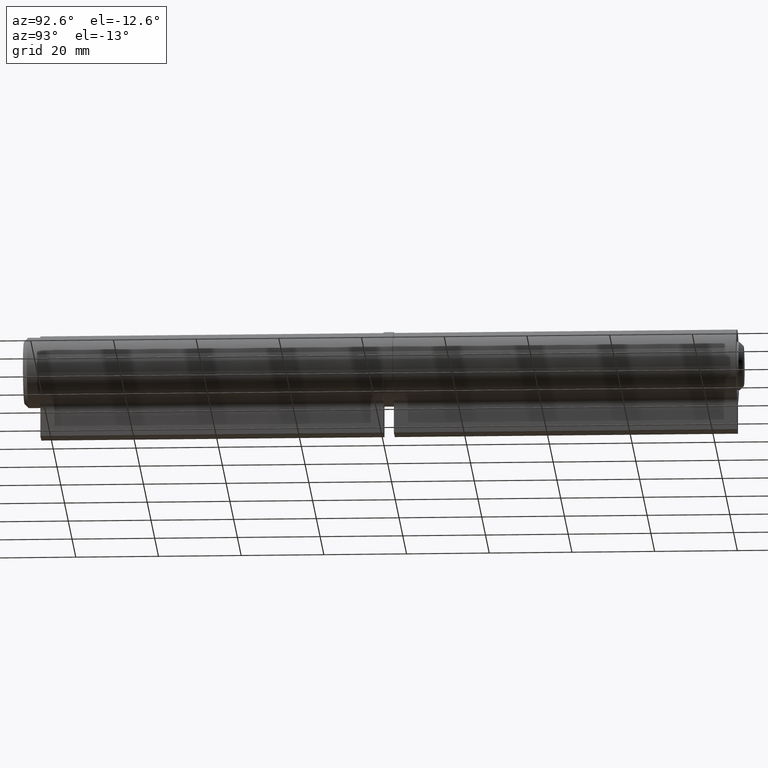
[diagram: clean part render]
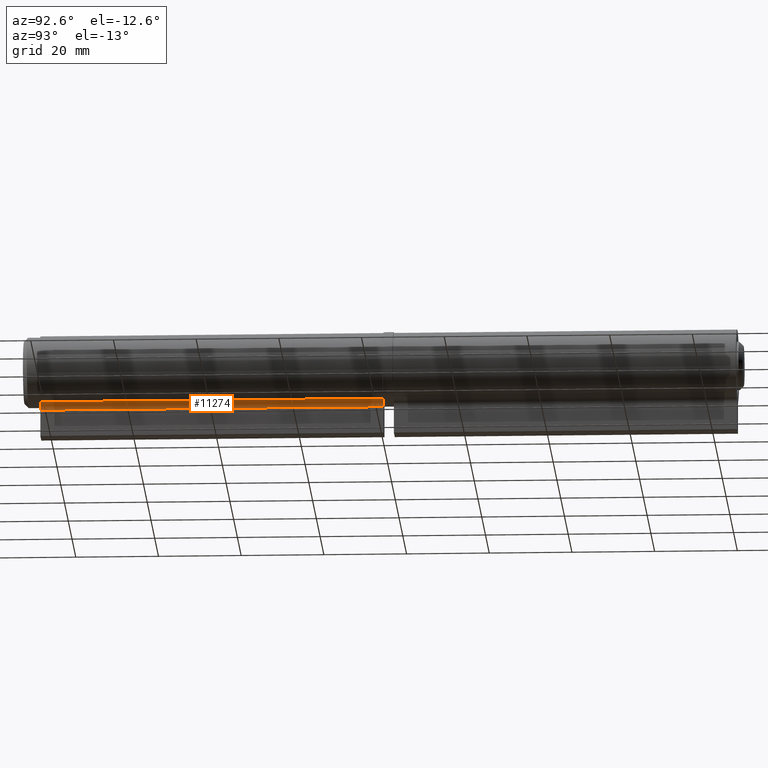
[diagram: same view with one face highlighted and labeled with its STEP entity id]
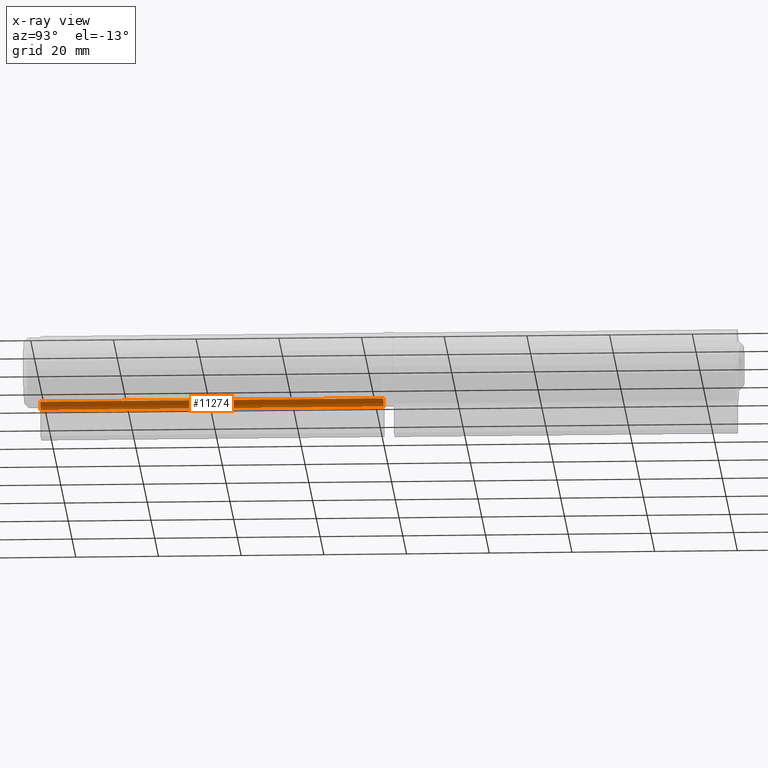
[diagram: x-ray of the same camera — body ghosted, the highlighted face saturated]
A machine part, auxiliary view. The second image highlights one B-rep face of the part: STEP entity #11274.
The next image is the same camera in x-ray: the body ghosted, the highlighted face saturated — about 0% of this face is hidden behind the body in this view.
In plain terms, the highlighted cylindrical surface (edge-blend (fillet) strip) has radius 2 mm, axis along (-0, -1, -0).
Its self-contained STEP definition (entity closure, byte-faithful):
#61 = DIRECTION ( 'NONE',  ( -0.000000000000000000, -1.000000000000000000, 0.000000000000000000 ) ) ;
#1046 = VERTEX_POINT ( 'NONE', #9500 ) ;
#1706 = ORIENTED_EDGE ( 'NONE', *, *, #13520, .T. ) ;
#1716 = ORIENTED_EDGE ( 'NONE', *, *, #8662, .F. ) ;
#1759 = DIRECTION ( 'NONE',  ( -0.000000000000000000, -1.000000000000000000, -0.000000000000000000 ) ) ;
#2277 = AXIS2_PLACEMENT_3D ( 'NONE', #5314, #61, #12600 ) ;
#2514 = DIRECTION ( 'NONE',  ( -0.000000000000000000, -1.000000000000000000, 0.000000000000000000 ) ) ;
#2701 = CARTESIAN_POINT ( 'NONE',  ( 2.549999999999999822, -41.50000000000000000, -9.794769012079866499 ) ) ;
#3998 = AXIS2_PLACEMENT_3D ( 'NONE', #12032, #2514, #4737 ) ;
#4590 = VERTEX_POINT ( 'NONE', #2701 ) ;
#4724 = CARTESIAN_POINT ( 'NONE',  ( 2.549999999999999822, 41.50000000000000000, -9.794769012079866499 ) ) ;
#4737 = DIRECTION ( 'NONE',  ( 0.000000000000000000, 0.000000000000000000, -1.000000000000000000 ) ) ;
#4978 = LINE ( 'NONE', #4724, #12290 ) ;
#5005 = LINE ( 'NONE', #11543, #6079 ) ;
#5038 = CARTESIAN_POINT ( 'NONE',  ( 2.549999999999999822, 41.50000000000000000, -9.794769012079866499 ) ) ;
#5314 = CARTESIAN_POINT ( 'NONE',  ( 4.549999999999998934, 41.50000000000000000, -9.794769012079866499 ) ) ;
#5699 = VERTEX_POINT ( 'NONE', #8943 ) ;
#5854 = ORIENTED_EDGE ( 'NONE', *, *, #12366, .T. ) ;
#6036 = DIRECTION ( 'NONE',  ( 0.000000000000000000, 0.000000000000000000, -1.000000000000000000 ) ) ;
#6079 = VECTOR ( 'NONE', #10532, 1000.000000000000000 ) ;
#6718 = CIRCLE ( 'NONE', #3998, 2.000000000000000000 ) ;
#8149 = ORIENTED_EDGE ( 'NONE', *, *, #11890, .F. ) ;
#8662 = EDGE_CURVE ( 'NONE', #8776, #4590, #4978, .T. ) ;
#8776 = VERTEX_POINT ( 'NONE', #5038 ) ;
#8943 = CARTESIAN_POINT ( 'NONE',  ( 3.707407407407407263, 41.50000000000000000, -7.980922898731742876 ) ) ;
#9500 = CARTESIAN_POINT ( 'NONE',  ( 3.707407407407407263, -41.50000000000000000, -7.980922898731742876 ) ) ;
#9717 = CYLINDRICAL_SURFACE ( 'NONE', #10847, 2.000000000000000000 ) ;
#10089 = DIRECTION ( 'NONE',  ( -0.000000000000000000, -1.000000000000000000, -0.000000000000000000 ) ) ;
#10532 = DIRECTION ( 'NONE',  ( -0.000000000000000000, -1.000000000000000000, -0.000000000000000000 ) ) ;
#10847 = AXIS2_PLACEMENT_3D ( 'NONE', #12311, #1759, #6036 ) ;
#11274 = ADVANCED_FACE ( 'NONE', ( #12567 ), #9717, .F. ) ;
#11543 = CARTESIAN_POINT ( 'NONE',  ( 3.707407407407407263, 41.50000000000000000, -7.980922898731742876 ) ) ;
#11890 = EDGE_CURVE ( 'NONE', #5699, #8776, #13328, .T. ) ;
#12032 = CARTESIAN_POINT ( 'NONE',  ( 4.549999999999998934, -41.50000000000000000, -9.794769012079866499 ) ) ;
#12290 = VECTOR ( 'NONE', #10089, 1000.000000000000000 ) ;
#12311 = CARTESIAN_POINT ( 'NONE',  ( 4.549999999999998934, 41.50000000000000000, -9.794769012079866499 ) ) ;
#12366 = EDGE_CURVE ( 'NONE', #5699, #1046, #5005, .T. ) ;
#12567 = FACE_OUTER_BOUND ( 'NONE', #13732, .T. ) ;
#12600 = DIRECTION ( 'NONE',  ( 0.000000000000000000, 0.000000000000000000, -1.000000000000000000 ) ) ;
#13328 = CIRCLE ( 'NONE', #2277, 2.000000000000000000 ) ;
#13520 = EDGE_CURVE ( 'NONE', #1046, #4590, #6718, .T. ) ;
#13732 = EDGE_LOOP ( 'NONE', ( #1706, #1716, #8149, #5854 ) ) ;